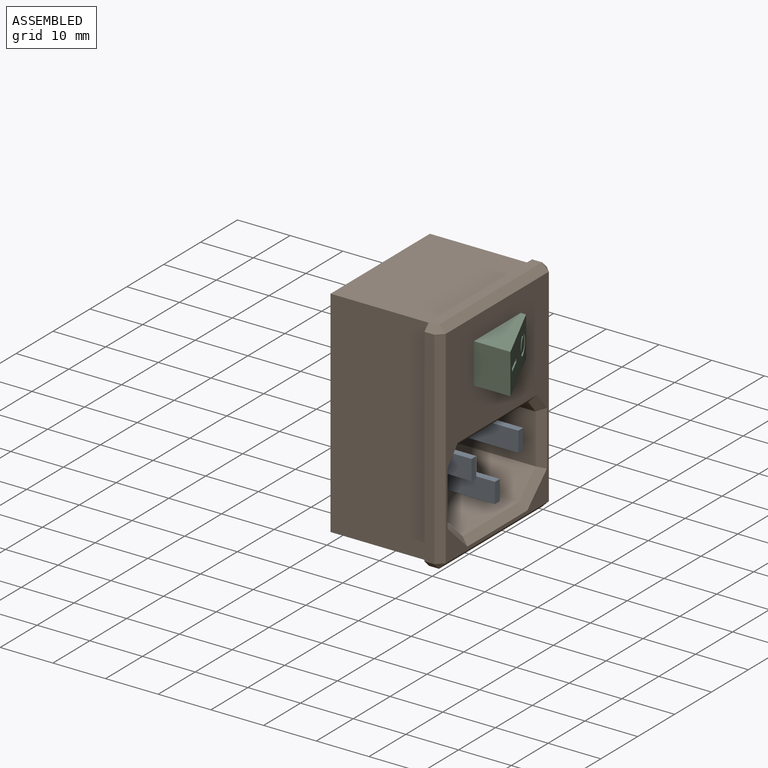
[diagram: assembled view]
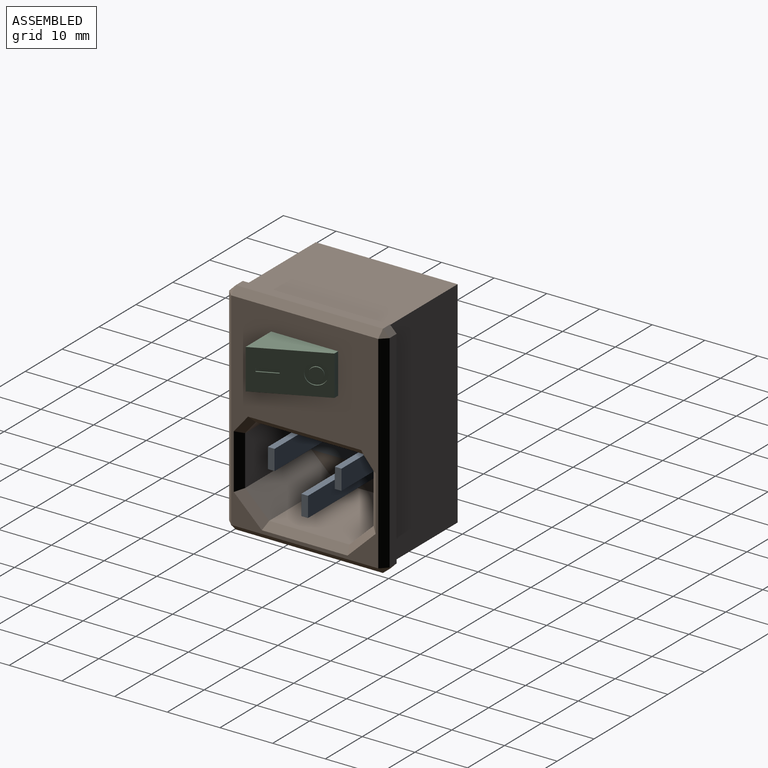
[diagram: assembled view, second angle]
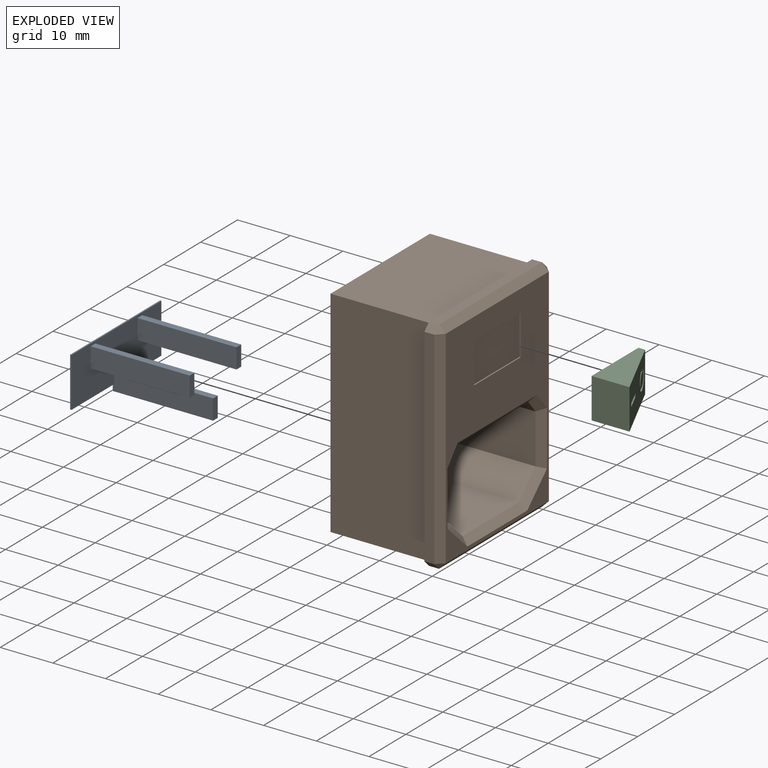
[diagram: exploded view]
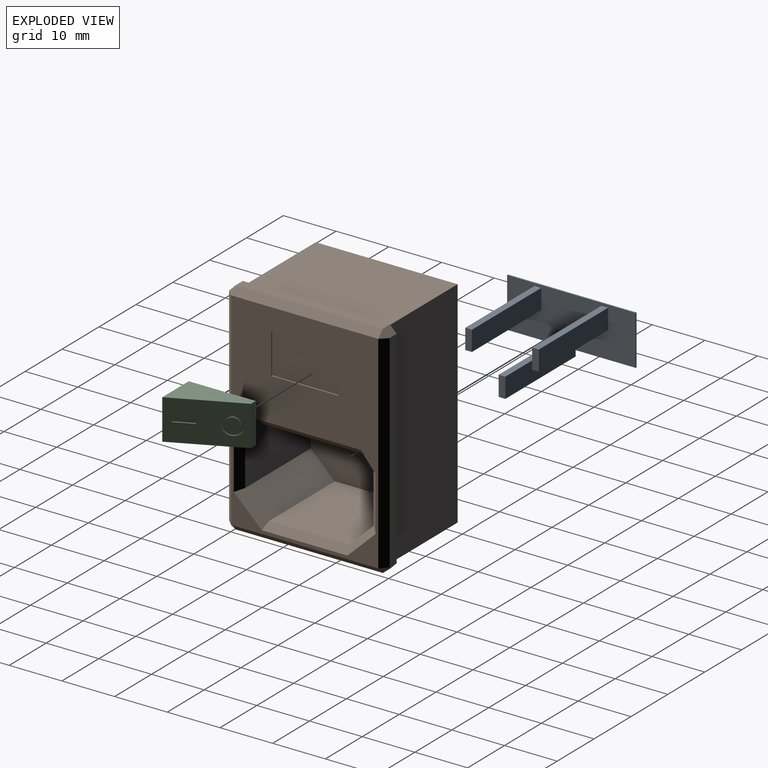
[diagram: exploded view, second angle]
ASSEMBLY  parts=3 mates=2
PART A: 22 faces, bbox 19.1x24.4x10.6 mm
  f0: plane 24.38x9.42mm, normal (1,0,0), area 216.7mm2, adj f1,f3,f4,f5,f6,f7,f8,f10
  f1: plane 19.05x3.81mm, normal (0,-1,0), area 71.9mm2, adj f0,f2,f8,f9,f10,f11
  f2: plane 19.05x1.27mm, normal (0,0,-1), area 24.2mm2, adj f1,f3,f9,f11
  f3: plane 19.05x3.81mm, normal (0,1,0), area 71.9mm2, adj f0,f2,f4,f9,f10,f11
  f4: plane 11.56x0.25mm, normal (0,0,-1), area 2.9mm2, adj f0,f3,f5,f9
  f5: plane 9.42x0.25mm, normal (0,1,0), area 2.4mm2, adj f0,f4,f6,f9
  f6: plane 24.38x0.25mm, normal (0,0,1), area 6.2mm2, adj f0,f5,f7,f9
  f7: plane 9.42x0.25mm, normal (0,-1,0), area 2.4mm2, adj f0,f6,f8,f9
  f8: plane 11.56x0.25mm, normal (0,0,-1), area 2.9mm2, adj f0,f1,f7,f9
  f9: plane 24.38x10.65mm, normal (-1,0,0), area 231.2mm2, adj f1,f2,f3,f4,f5,f6,f7,f8
  f10: plane 18.8x1.27mm, normal (0,0,1), area 23.9mm2, adj f0,f1,f3,f11
  f11: plane 3.81x1.27mm, normal (1,0,0), area 4.8mm2, adj f1,f2,f3,f10
  f12: plane 18.8x1.27mm, normal (0,0,-1), area 23.9mm2, adj f0,f13,f15,f16
  f13: plane 18.8x3.81mm, normal (0,1,0), area 71.6mm2, adj f0,f12,f14,f16
  f14: plane 18.8x1.27mm, normal (0,0,1), area 23.9mm2, adj f0,f13,f15,f16
  f15: plane 18.8x3.81mm, normal (0,-1,0), area 71.6mm2, adj f0,f12,f14,f16
  f16: plane 3.81x1.27mm, normal (1,0,0), area 4.8mm2, adj f12,f13,f14,f15
  f17: plane 18.8x1.27mm, normal (0,0,-1), area 23.9mm2, adj f0,f18,f20,f21
  f18: plane 18.8x3.81mm, normal (0,1,0), area 71.6mm2, adj f0,f17,f19,f21
  f19: plane 18.8x1.27mm, normal (0,0,1), area 23.9mm2, adj f0,f18,f20,f21
  f20: plane 18.8x3.81mm, normal (0,-1,0), area 71.6mm2, adj f0,f17,f19,f21
  f21: plane 3.81x1.27mm, normal (1,0,0), area 4.8mm2, adj f17,f18,f19,f20
PART B: 45 faces, bbox 22.2x30.5x41.9 mm
  f0: plane 39.37x27.94mm, normal (1,0,0), area 533.3mm2, adj f23,f24,f28,f29,f32,f33,f34,f35
  f1: plane 26.92x19.05mm, normal (0,0,-1), area 512.9mm2, adj f2,f4,f5,f10
  f2: plane 40.89x19.05mm, normal (0,1,0), area 779mm2, adj f1,f3,f5,f10
  f3: plane 26.92x19.05mm, normal (0,0,1), area 512.9mm2, adj f2,f4,f5,f10
  f4: plane 40.89x19.05mm, normal (0,-1,0), area 779mm2, adj f1,f3,f5,f10
  f5: plane 40.89x26.92mm, normal (-1,0,0), area 1101mm2, adj f1,f2,f3,f4
  f6: plane 27.94x1.91mm, normal (0,0,-1), area 53.2mm2, adj f10,f20,f22,f23
  f7: plane 39.37x1.91mm, normal (0,1,0), area 75mm2, adj f10,f22,f28,f31
  f8: plane 27.94x1.91mm, normal (0,0,1), area 53.2mm2, adj f10,f25,f29,f31
  f9: plane 39.37x1.91mm, normal (0,-1,0), area 75mm2, adj f10,f20,f24,f25
  f10: plane 41.91x30.48mm, normal (-1,0,0), area 173.2mm2, adj f1,f2,f3,f4,f6,f7,f8,f9
  f11: plane 17.78x2.43mm, normal (0,0.77,-0.64), area 56.5mm2, adj f12,f18,f19,f33
  f12: plane 17.78x9.42mm, normal (0,1,0), area 167.4mm2, adj f11,f13,f19,f32
  f13: plane 17.78x4.57mm, normal (0,0.69,0.72), area 112.9mm2, adj f12,f14,f19,f34
  f14: plane 17.78x15.24mm, normal (0,0,1), area 271mm2, adj f13,f15,f19,f36
  f15: plane 17.78x4.57mm, normal (0,-0.69,0.72), area 112.9mm2, adj f14,f16,f19,f38
  f16: plane 17.78x9.42mm, normal (0,-1,0), area 167.4mm2, adj f15,f17,f19,f39
  f17: plane 17.78x2.43mm, normal (0,-0.77,-0.64), area 56.5mm2, adj f16,f18,f19,f37
  f18: plane 20.3x17.78mm, normal (0,0,-1), area 361mm2, adj f11,f17,f19,f35
  f19: plane 24.38x16.26mm, normal (1,0,0), area 371.3mm2, adj f11,f12,f13,f14,f15,f16,f17,f18
  f20: plane 1.91x1.27mm, normal (0,-0.71,-0.71), area 3.4mm2, adj f6,f9,f10,f21
  f21: plane 1.27x1.27mm, normal (0.58,-0.58,-0.58), area 1.4mm2, adj f20,f23,f24
  f22: plane 1.91x1.27mm, normal (0,0.71,-0.71), area 3.4mm2, adj f6,f7,f10,f26
  f23: plane 27.94x1.27mm, normal (0.71,0,-0.71), area 50.2mm2, adj f0,f6,f21,f26
  f24: plane 39.37x1.27mm, normal (0.71,-0.71,0), area 70.7mm2, adj f0,f9,f21,f27
  f25: plane 1.91x1.27mm, normal (0,-0.71,0.71), area 3.4mm2, adj f8,f9,f10,f27
  f26: plane 1.27x1.27mm, normal (0.58,0.58,-0.58), area 1.4mm2, adj f22,f23,f28
  f27: plane 1.27x1.27mm, normal (0.58,-0.58,0.58), area 1.4mm2, adj f24,f25,f29
  f28: plane 39.37x1.27mm, normal (0.71,0.71,0), area 70.7mm2, adj f0,f7,f26,f30
  f29: plane 27.94x1.27mm, normal (0.71,0,0.71), area 50.2mm2, adj f0,f8,f27,f30
  f30: plane 1.27x1.27mm, normal (0.58,0.58,0.58), area 1.4mm2, adj f28,f29,f31
  f31: plane 1.91x1.27mm, normal (0,0.71,0.71), area 3.4mm2, adj f7,f8,f10,f30
  f32: plane 10.42x1.27mm, normal (0.71,0.71,0), area 17.8mm2, adj f0,f12,f33,f34
  f33: plane 3.7x3.31mm, normal (0.71,0.54,-0.45), area 6.6mm2, adj f0,f11,f32,f35
  f34: plane 5.84x5.68mm, normal (0.71,0.49,0.51), area 12.3mm2, adj f0,f13,f32,f36
  f35: plane 21.49x1.27mm, normal (0.71,0,-0.71), area 37.5mm2, adj f0,f18,f33,f37
  f36: plane 16.27x1.27mm, normal (0.71,0,0.71), area 28.3mm2, adj f0,f14,f34,f38
  f37: plane 3.7x3.31mm, normal (0.71,-0.54,-0.45), area 6.6mm2, adj f0,f17,f35,f39
  f38: plane 5.84x5.68mm, normal (0.71,-0.49,0.51), area 12.3mm2, adj f0,f15,f36,f39
  f39: plane 10.42x1.27mm, normal (0.71,-0.71,0), area 17.8mm2, adj f0,f16,f37,f38
  f40: plane 12.7x0.25mm, normal (0,0,1), area 3.2mm2, adj f0,f41,f43,f44
  f41: plane 7.62x0.25mm, normal (0,-1,0), area 1.9mm2, adj f0,f40,f42,f44
  f42: plane 12.7x0.25mm, normal (0,0,-1), area 3.2mm2, adj f0,f41,f43,f44
  f43: plane 7.62x0.25mm, normal (0,1,0), area 1.9mm2, adj f0,f40,f42,f44
  f44: plane 12.7x7.62mm, normal (1,0,0), area 96.8mm2, adj f40,f41,f42,f43
PART C: 15 faces, bbox 7.2x12.7x7.6 mm
  f0: plane 12.7x7.62mm, normal (0.91,0.42,0), area 93mm2, adj f1,f2,f3,f4,f7,f10,f11,f12
  f1: plane 7.62x7.19mm, normal (0,-1,0), area 54.8mm2, adj f0,f2,f4,f5
  f2: plane 12.7x7.19mm, normal (0,0,-1), area 53.7mm2, adj f0,f1,f3,f5
  f3: plane 7.62x1.27mm, normal (0,1,0), area 9.7mm2, adj f0,f2,f4,f5
  f4: plane 12.7x7.19mm, normal (0,0,1), area 53.7mm2, adj f0,f1,f3,f5
  f5: plane 12.7x7.62mm, normal (-1,0,0), area 96.8mm2, adj f1,f2,f3,f4
  f6: cylinder r=1.27mm len=2.54mm, axis (0.91,0.42,0), area 2mm2, adj f8,f9
  f7: cylinder r=1.91mm len=3.81mm, axis (0.91,0.42,0), area 3mm2, adj f0,f8
  f8: plane 3.81x3.45mm, normal (0.91,0.42,0), area 6.3mm2, adj f6,f7
  f9: plane 2.54x2.3mm, normal (0.91,0.42,0), area 5.1mm2, adj f6
  f10: plane 3.56x1.84mm, normal (0,0,1), area 1mm2, adj f0,f11,f13,f14
  f11: plane 0.64x0.23mm, normal (0.42,-0.91,0), area 0.2mm2, adj f0,f10,f12,f14
  f12: plane 3.56x1.84mm, normal (0,0,-1), area 1mm2, adj f0,f11,f13,f14
  f13: plane 0.64x0.23mm, normal (-0.42,0.91,0), area 0.2mm2, adj f0,f10,f12,f14
  f14: plane 3.45x1.61mm, normal (0.91,0.42,0), area 2.4mm2, adj f10,f11,f12,f13
PLACE A t=(-17.38,20.92,6.96)mm
PLACE B t=(-20.55,25.24,11.69)mm
PLACE C t=(1.42,25.24,23.41)mm
MATE planar B.f19 <-> A.f9  axis (1,0,0) through (-17.38,37.43,7.74)mm
MATE planar C.f5 <-> B.f44  axis (-1,0,0) through (1.42,25.24,23.41)mm
